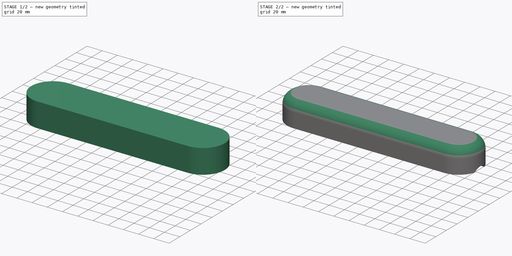
[diagram: build sequence overview — one tinted view per stage of 2, left to right]
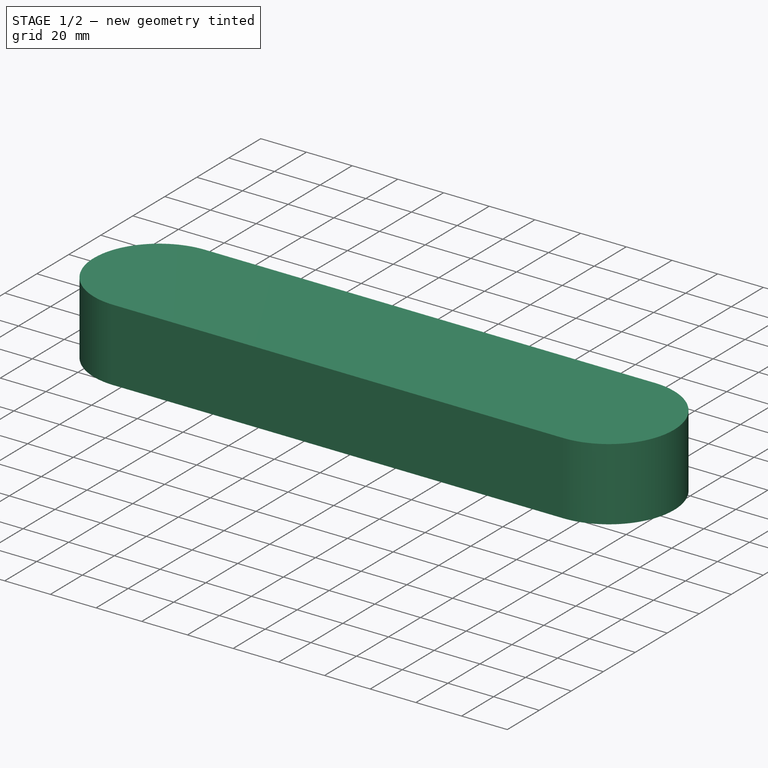
[diagram: stage 1 of 2 — iso view after this stage's code; geometry added in this stage tinted green]
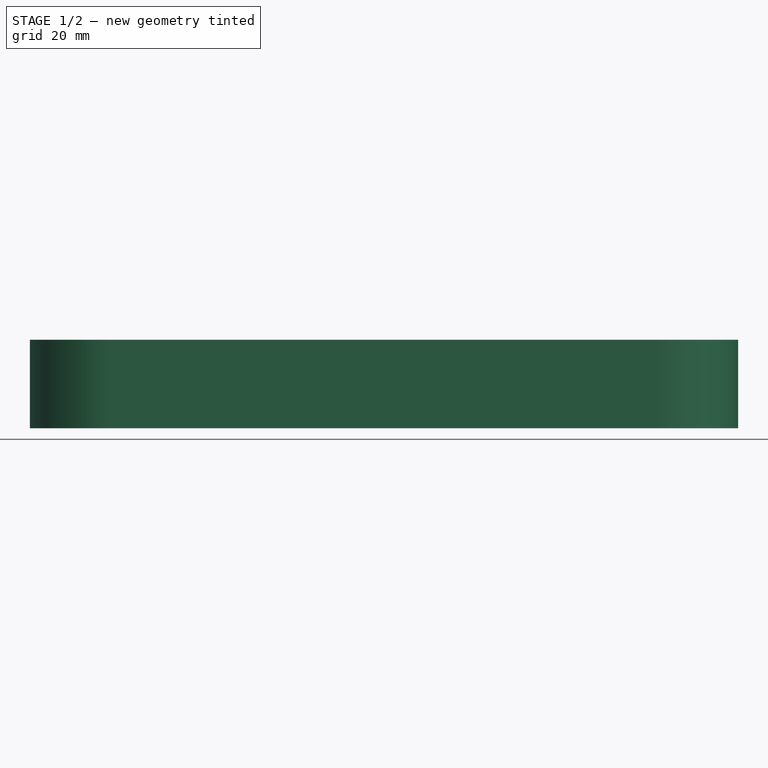
[diagram: stage 1 of 2 — front view after this stage's code; geometry added in this stage tinted green]
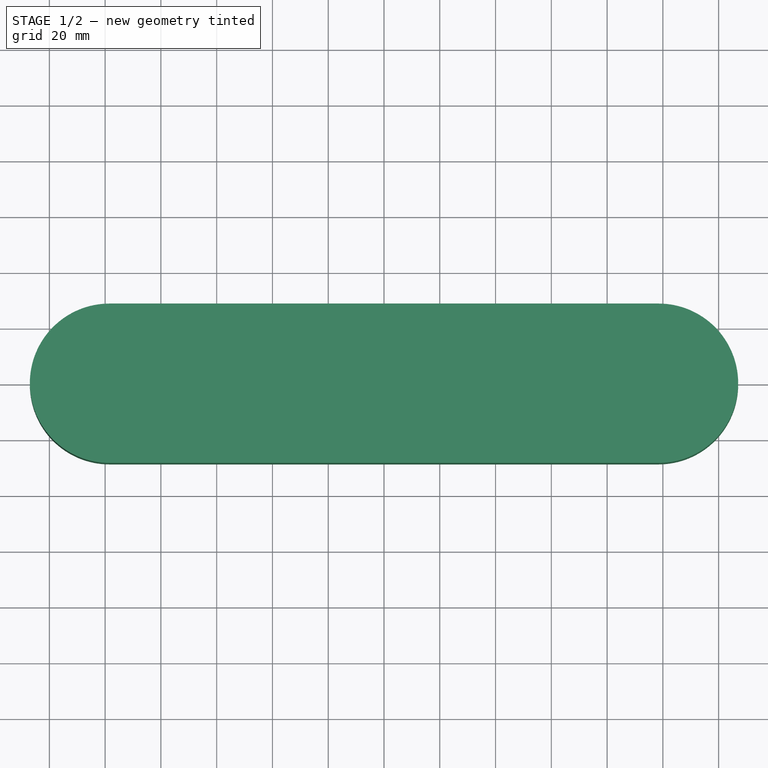
[diagram: stage 1 of 2 — top view after this stage's code; geometry added in this stage tinted green]
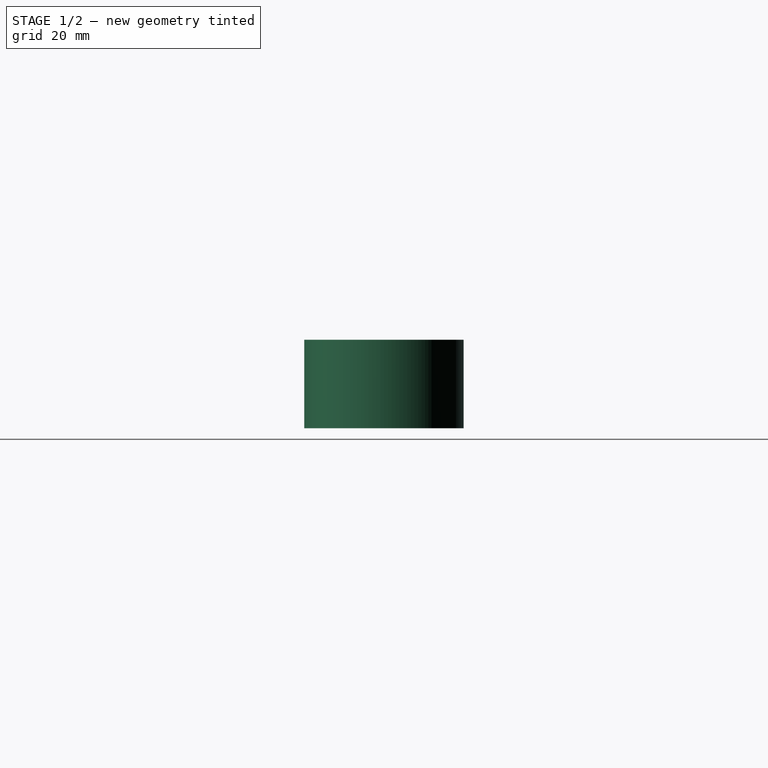
[diagram: stage 1 of 2 — right view after this stage's code; geometry added in this stage tinted green]
FCSTD DOCUMENT  (FreeCAD 0.21R33345 (Git))
Label: Armrest
License: All rights reserved
LicenseURL: http://en.wikipedia.org/wiki/All_rights_reserved
objects: Sketcher::SketchObject×3, PartDesign::Pocket×2, PartDesign::Pad×1, PartDesign::Fillet×1, PartDesign::Body×1
note: 12 computed .brp shape members not serialized (recipe doc carries the construction recipe); baked Part::Feature solids carry a one-line shape summary decoded from their .brp

FEATURE [Sketcher::SketchObject] Sketch
  FullyConstrained = true
  MapMode = 5
  Support = -> [XY_Plane]
  sketch-geometry (5):
    g0: LineSegment StartX=-127 StartY=-28.575 StartZ=0 EndX=-127 EndY=28.575 EndZ=0
    g1: LineSegment StartX=-127 StartY=28.575 StartZ=0 EndX=127 EndY=28.575 EndZ=0
    g2: LineSegment StartX=127 StartY=28.575 StartZ=0 EndX=127 EndY=-28.575 EndZ=0
    g3: LineSegment StartX=127 StartY=-28.575 StartZ=0 EndX=-127 EndY=-28.575 EndZ=0
    g4: GeomPoint X=0 Y=8e-16 Z=0
  constraints (12):
    c: Coincident(g0,g1)
    c: Coincident(g1,g2)
    c: Coincident(g2,g3)
    c: Coincident(g3,g0)
    c: Horizontal(g1)
    c: Horizontal(g3)
    c: Vertical(g0)
    c: Vertical(g2)
    c: Symmetric(g1,g0,g4)
    c: Coincident(g4,g-1)
    c: DistanceX(g1,g1) = 254
    c: DistanceY(g0,g0) = 57.15
FEATURE [PartDesign::Pad] Pad
  Direction = (0,0,1)
  Length = 31.75
  Length2 = 10
  Profile = -> Sketch
  ReferenceAxis = -> Sketch [N_Axis]
  Refine = true
  Type = 0
FEATURE [Sketcher::SketchObject] Sketch001
  ExternalGeometry = -> [Pad]
  FullyConstrained = false
  MapMode = 5
  Placement = pos=(0,0,31.75) rot=(0,0,1;0rad)
  Support = -> [Pad]
  sketch-geometry (9):
    g0: ArcOfCircle CenterX=-98.425 CenterY=0 CenterZ=0 NormalX=0 NormalY=0 NormalZ=1 AngleXU=0 Radius=28.575 StartAngle=1.5708 EndAngle=4.71239
    g1: LineSegment StartX=-98.425 StartY=28.575 StartZ=0 EndX=-145.596 EndY=28.575 EndZ=0
    g2: LineSegment StartX=-98.425 StartY=-28.575 StartZ=0 EndX=-145.596 EndY=-28.575 EndZ=0
    g3: LineSegment StartX=-145.596 StartY=28.575 StartZ=0 EndX=-145.596 EndY=-28.575 EndZ=0
    g4: LineSegment StartX=0 StartY=0 StartZ=0 EndX=0 EndY=60.131 EndZ=0
    g5: ArcOfCircle CenterX=98.425 CenterY=0 CenterZ=0 NormalX=0 NormalY=0 NormalZ=1 AngleXU=0 Radius=28.575 StartAngle=4.71239 EndAngle=7.85398
    g6: LineSegment StartX=98.425 StartY=28.575 StartZ=0 EndX=145.596 EndY=28.575 EndZ=0
    g7: LineSegment StartX=98.425 StartY=-28.575 StartZ=0 EndX=145.596 EndY=-28.575 EndZ=0
    g8: LineSegment StartX=145.596 StartY=28.575 StartZ=0 EndX=145.596 EndY=-28.575 EndZ=0
  constraints (16):
    c: PointOnObject(g0,g-1)
    c: Tangent(g0,g-3)
    c: Tangent(g0,g-4)
    c: Coincident(g1,g0)
    c: Horizontal(g1)
    c: Coincident(g2,g0)
    c: Horizontal(g2)
    c: Coincident(g3,g1)
    c: Coincident(g3,g2)
    c: Vertical(g3)
    c: Coincident(g4,g-1)
    c: PointOnObject(g4,g-2)
    c: Coincident(g6,g5)
    c: Coincident(g7,g5)
    c: Coincident(g8,g6)
    c: Coincident(g8,g7)
FEATURE [PartDesign::Pocket] Pocket
  BaseFeature = -> Pad
  Direction = (0,0,-1)
  Length = 5
  Length2 = 5
  Profile = -> Sketch001
  ReferenceAxis = -> Sketch001 [N_Axis]
  Refine = true
  Type = 1
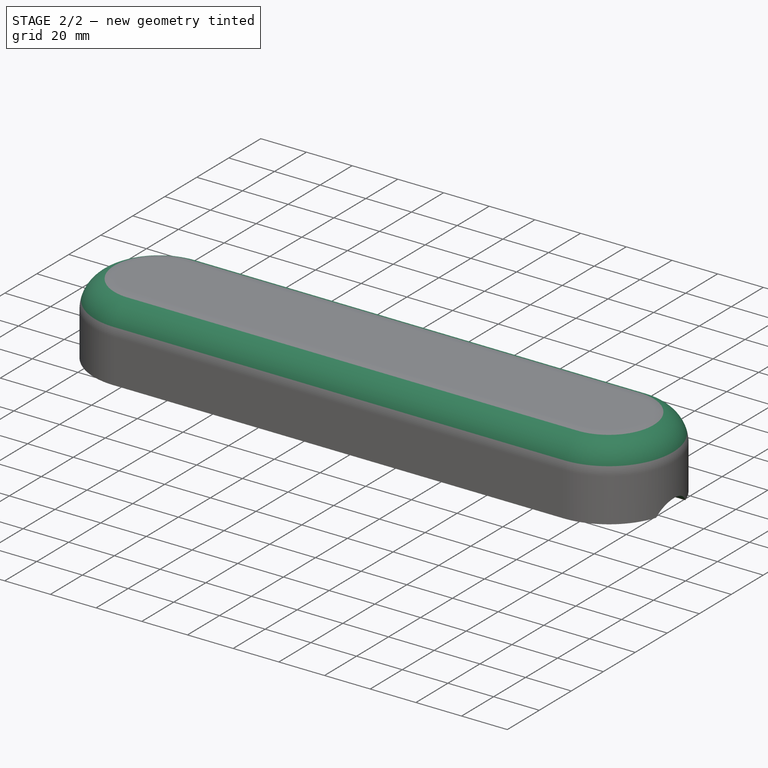
[diagram: stage 2 of 2 — iso view after this stage's code; geometry added in this stage tinted green]
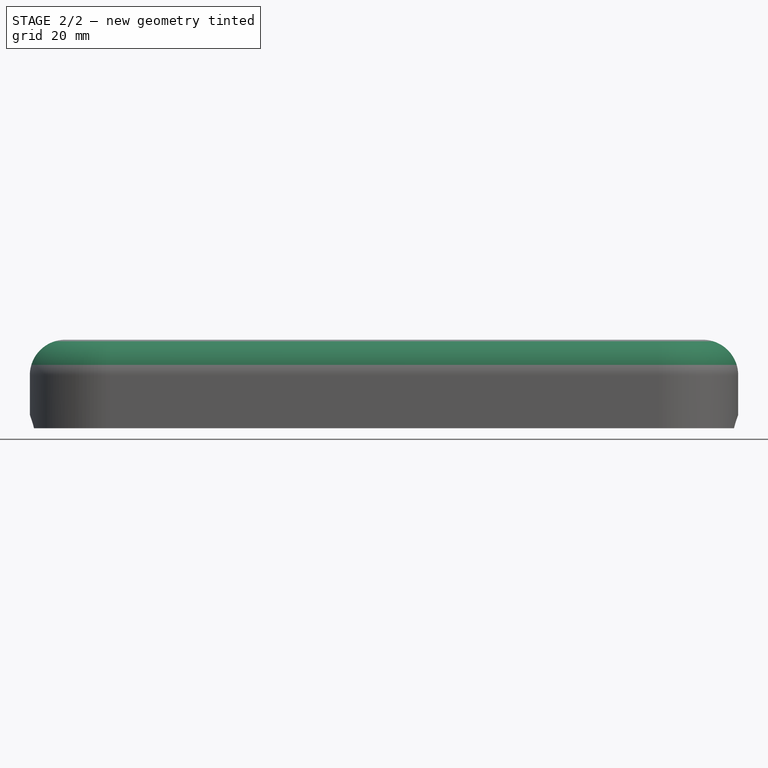
[diagram: stage 2 of 2 — front view after this stage's code; geometry added in this stage tinted green]
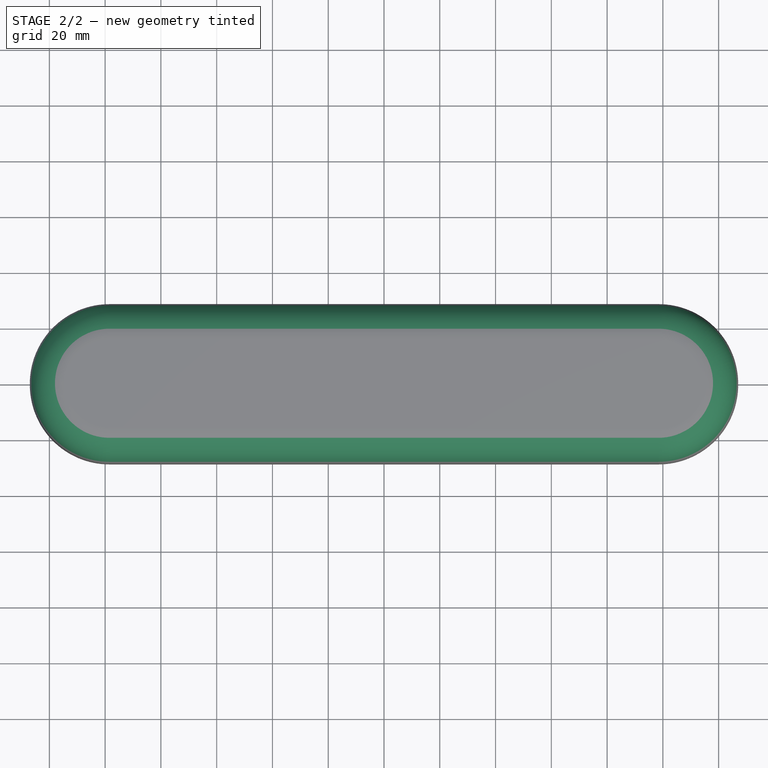
[diagram: stage 2 of 2 — top view after this stage's code; geometry added in this stage tinted green]
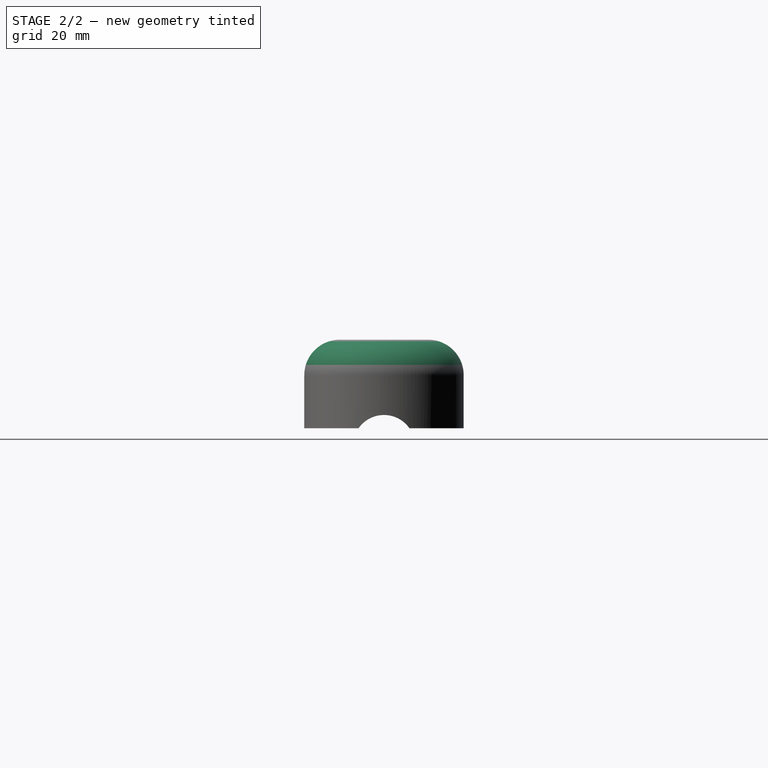
[diagram: stage 2 of 2 — right view after this stage's code; geometry added in this stage tinted green]
FEATURE [PartDesign::Fillet] Fillet
  Base = -> Pocket [Edge14,Edge10,Edge8,Edge11,Edge12,Edge13]
  BaseFeature = -> Pocket
  Radius = 12.7
  Refine = true
  SupportTransform = false
  UseAllEdges = false
FEATURE [Sketcher::SketchObject] Sketch002
  FullyConstrained = true
  MapMode = 5
  Placement = pos=(0,0,0) rot=(0.57735,0.57735,0.57735;2.0944rad)
  Support = -> [YZ_Plane]
  sketch-geometry (2):
    g0: Circle CenterX=0 CenterY=-6.35 CenterZ=0 NormalX=0 NormalY=0 NormalZ=1 AngleXU=0 Radius=11.1125
    g1: LineSegment StartX=0 StartY=0 StartZ=0 EndX=0 EndY=-6.35 EndZ=0
  constraints (5):
    c: PointOnObject(g0,g-2)
    c: Coincident(g1,g-1)
    c: Coincident(g1,g0)
    c: DistanceY(g1,g1) = 6.35
    c: Diameter(g0) = 22.225
FEATURE [PartDesign::Pocket] Pocket001
  BaseFeature = -> Fillet
  Direction = (-1,2e-16,-3e-16)
  Length = 5
  Length2 = 5
  Midplane = true
  Profile = -> Sketch002
  ReferenceAxis = -> Sketch002 [N_Axis]
  Refine = true
  Type = 1
FEATURE [PartDesign::Body] Body
  Group = -> [Sketch,Pad,Sketch001,Pocket,Fillet,Sketch002,Pocket001]
  Origin = -> Origin
  Tip = -> Pocket001
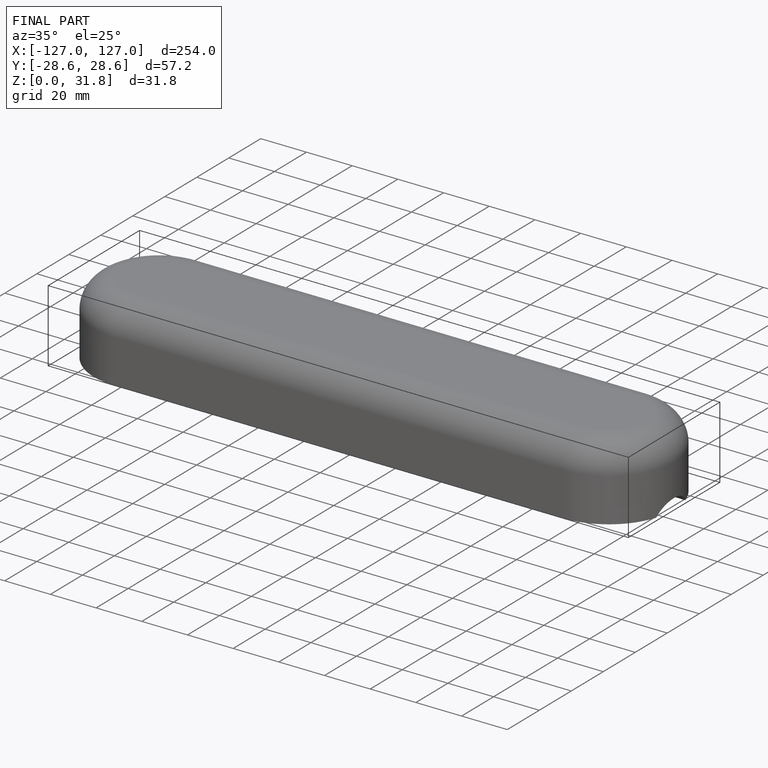
[diagram: finished part — iso view with bounding-box wireframe]
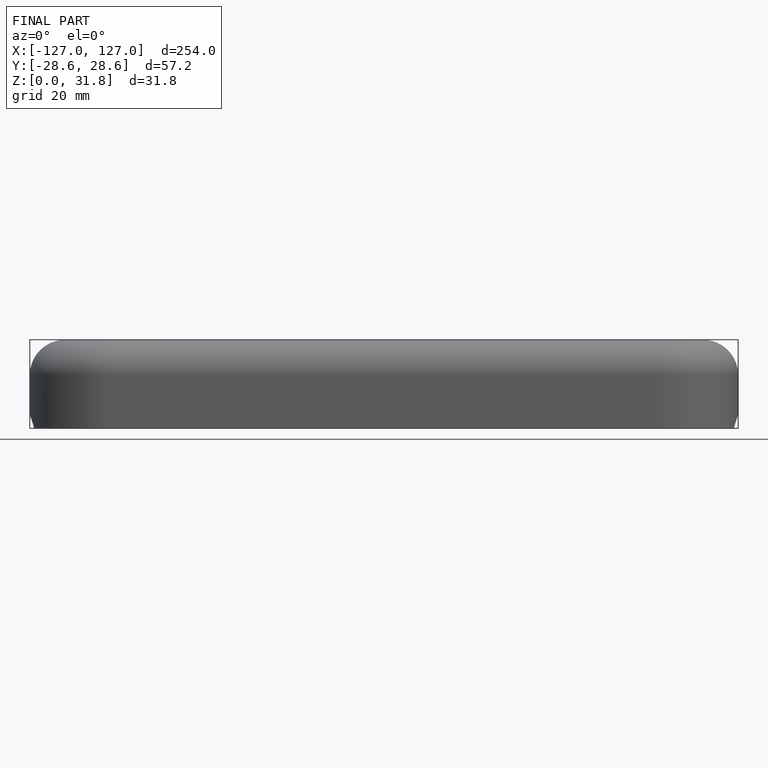
[diagram: finished part — front view with bounding-box wireframe]
